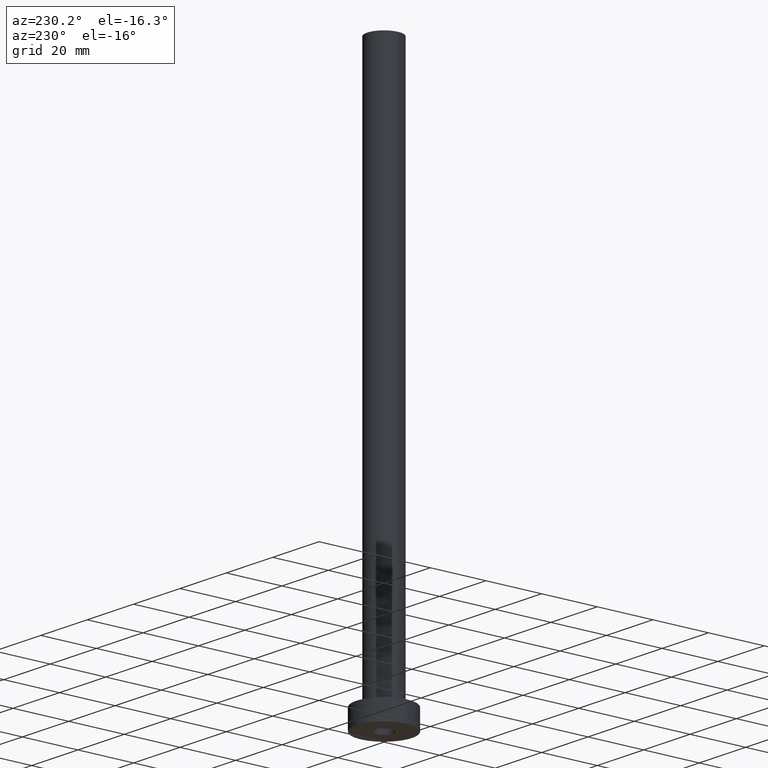
[diagram: clean part render]
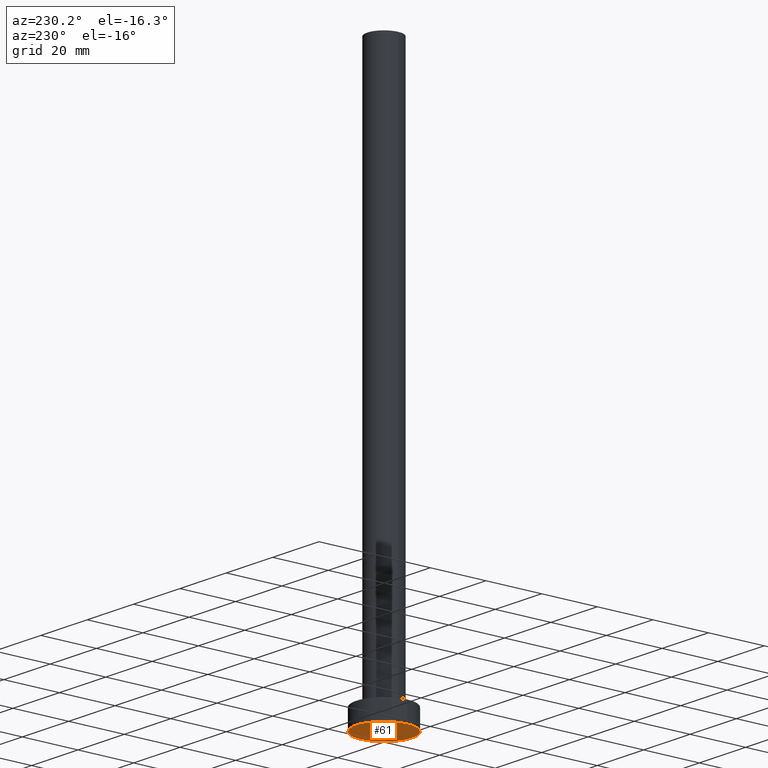
[diagram: same view with one face highlighted and labeled with its STEP entity id]
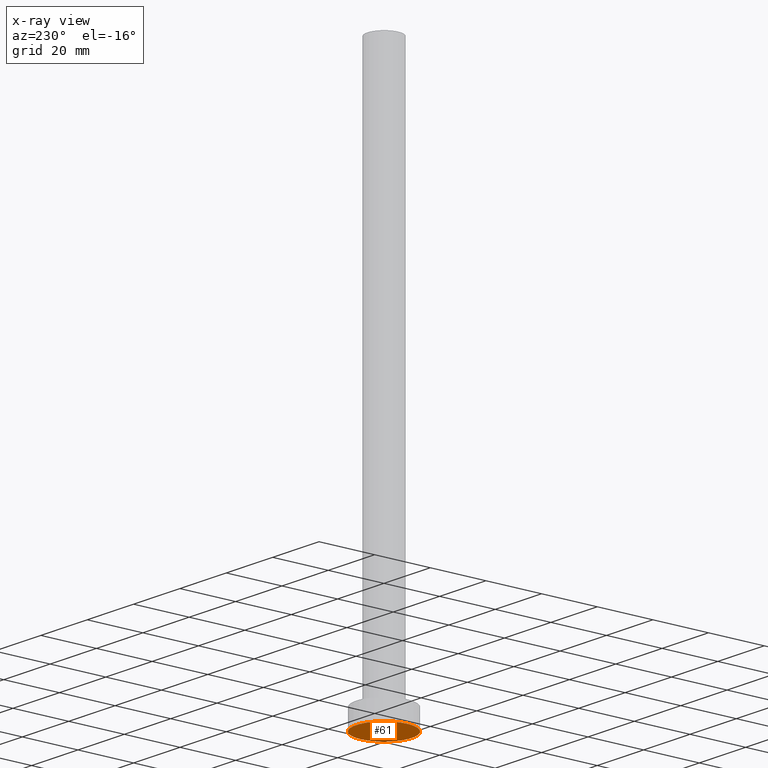
[diagram: x-ray of the same camera — body ghosted, the highlighted face saturated]
A machine part, auxiliary view. The second image highlights one B-rep face of the part: STEP entity #61.
The next image is the same camera in x-ray: the body ghosted, the highlighted face saturated — about 0% of this face is hidden behind the body in this view.
In plain terms, the highlighted planar face has unit normal (0, 0, 1).
Its self-contained STEP definition (entity closure, byte-faithful):
#9 = ORIENTED_EDGE ( 'NONE', *, *, #163, .F. ) ;
#13 = VERTEX_POINT ( 'NONE', #458 ) ;
#21 = ORIENTED_EDGE ( 'NONE', *, *, #386, .F. ) ;
#30 = EDGE_LOOP ( 'NONE', ( #9, #121 ) ) ;
#36 = AXIS2_PLACEMENT_3D ( 'NONE', #455, #271, #238 ) ;
#56 = CARTESIAN_POINT ( 'NONE',  ( -3.150000000000000355, 0.000000000000000000, 0.000000000000000000 ) ) ;
#61 = ADVANCED_FACE ( 'NONE', ( #208, #425 ), #62, .F. ) ;
#62 = PLANE ( 'NONE',  #286 ) ;
#63 = CARTESIAN_POINT ( 'NONE',  ( 3.150000000000000355, 3.857637417314163182E-16, 0.000000000000000000 ) ) ;
#82 = DIRECTION ( 'NONE',  ( 1.000000000000000000, 0.000000000000000000, 0.000000000000000000 ) ) ;
#117 = DIRECTION ( 'NONE',  ( 1.000000000000000000, 0.000000000000000000, -0.000000000000000000 ) ) ;
#120 = CARTESIAN_POINT ( 'NONE',  ( -10.00000000000000000, 0.000000000000000000, 0.000000000000000000 ) ) ;
#121 = ORIENTED_EDGE ( 'NONE', *, *, #143, .F. ) ;
#122 = AXIS2_PLACEMENT_3D ( 'NONE', #173, #192, #415 ) ;
#143 = EDGE_CURVE ( 'NONE', #13, #387, #461, .T. ) ;
#149 = CIRCLE ( 'NONE', #36, 3.150000000000000355 ) ;
#161 = CIRCLE ( 'NONE', #305, 3.150000000000000355 ) ;
#163 = EDGE_CURVE ( 'NONE', #387, #13, #234, .T. ) ;
#173 = CARTESIAN_POINT ( 'NONE',  ( 0.000000000000000000, 0.000000000000000000, 0.000000000000000000 ) ) ;
#192 = DIRECTION ( 'NONE',  ( 0.000000000000000000, 0.000000000000000000, 1.000000000000000000 ) ) ;
#205 = VERTEX_POINT ( 'NONE', #56 ) ;
#208 = FACE_BOUND ( 'NONE', #277, .T. ) ;
#226 = EDGE_CURVE ( 'NONE', #249, #205, #149, .T. ) ;
#234 = CIRCLE ( 'NONE', #122, 10.00000000000000000 ) ;
#238 = DIRECTION ( 'NONE',  ( 1.000000000000000000, 0.000000000000000000, 0.000000000000000000 ) ) ;
#242 = CARTESIAN_POINT ( 'NONE',  ( 0.000000000000000000, 0.000000000000000000, 0.000000000000000000 ) ) ;
#246 = ORIENTED_EDGE ( 'NONE', *, *, #226, .F. ) ;
#249 = VERTEX_POINT ( 'NONE', #63 ) ;
#251 = DIRECTION ( 'NONE',  ( 0.000000000000000000, 0.000000000000000000, 1.000000000000000000 ) ) ;
#252 = DIRECTION ( 'NONE',  ( -0.000000000000000000, -0.000000000000000000, -1.000000000000000000 ) ) ;
#271 = DIRECTION ( 'NONE',  ( -0.000000000000000000, -0.000000000000000000, -1.000000000000000000 ) ) ;
#277 = EDGE_LOOP ( 'NONE', ( #21, #246 ) ) ;
#283 = DIRECTION ( 'NONE',  ( 1.000000000000000000, 0.000000000000000000, 0.000000000000000000 ) ) ;
#286 = AXIS2_PLACEMENT_3D ( 'NONE', #424, #354, #117 ) ;
#305 = AXIS2_PLACEMENT_3D ( 'NONE', #242, #252, #283 ) ;
#354 = DIRECTION ( 'NONE',  ( 0.000000000000000000, 0.000000000000000000, 1.000000000000000000 ) ) ;
#374 = AXIS2_PLACEMENT_3D ( 'NONE', #428, #251, #82 ) ;
#386 = EDGE_CURVE ( 'NONE', #205, #249, #161, .T. ) ;
#387 = VERTEX_POINT ( 'NONE', #120 ) ;
#415 = DIRECTION ( 'NONE',  ( 1.000000000000000000, 0.000000000000000000, 0.000000000000000000 ) ) ;
#424 = CARTESIAN_POINT ( 'NONE',  ( 0.000000000000000000, 0.000000000000000000, 0.000000000000000000 ) ) ;
#425 = FACE_OUTER_BOUND ( 'NONE', #30, .T. ) ;
#428 = CARTESIAN_POINT ( 'NONE',  ( 0.000000000000000000, 0.000000000000000000, 0.000000000000000000 ) ) ;
#455 = CARTESIAN_POINT ( 'NONE',  ( 0.000000000000000000, 0.000000000000000000, 0.000000000000000000 ) ) ;
#458 = CARTESIAN_POINT ( 'NONE',  ( 10.00000000000000000, 1.224646799147353256E-15, 0.000000000000000000 ) ) ;
#461 = CIRCLE ( 'NONE', #374, 10.00000000000000000 ) ;